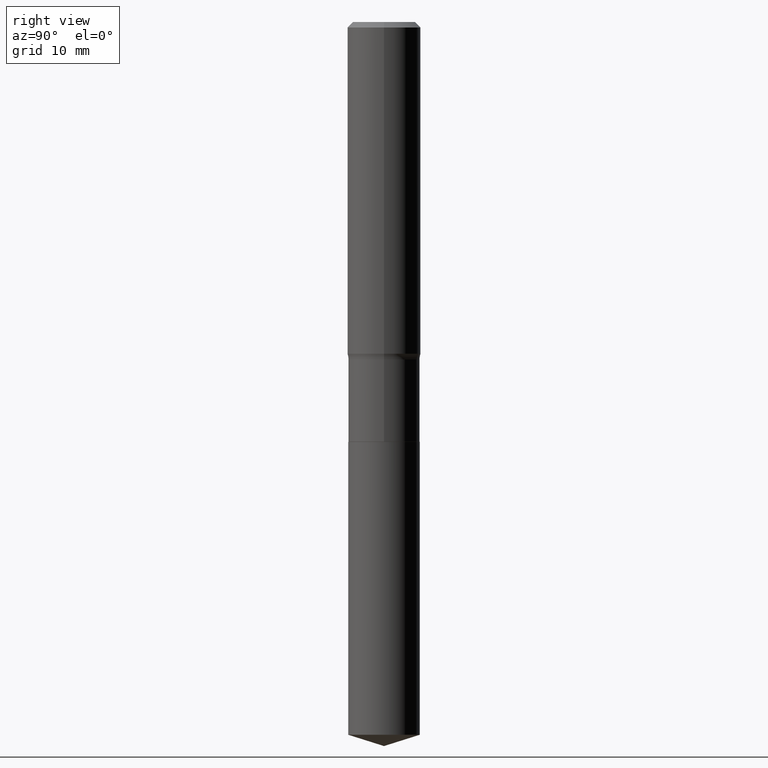
[diagram: clean part render]
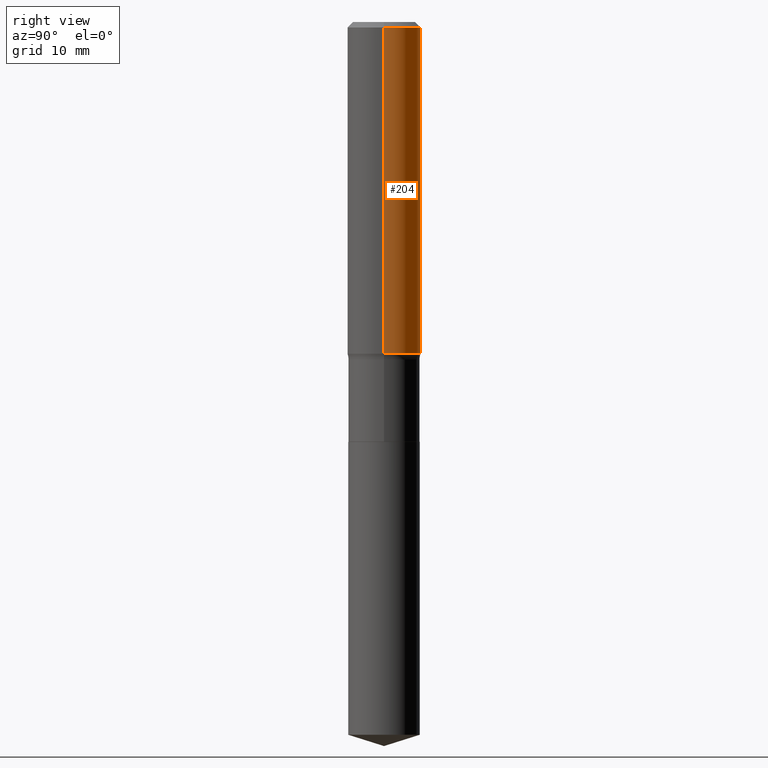
[diagram: same view with one face highlighted and labeled with its STEP entity id]
A machine part, right view. The second image highlights one B-rep face of the part: STEP entity #204.
In plain terms, the highlighted cylindrical surface (partial cylindrical patch) has radius 4.0005 mm, axis along (-0, 0, 1).
Its self-contained STEP definition (entity closure, byte-faithful):
#5 = DIRECTION ( 'NONE',  ( -2.445468806185136877E-29, 3.491481338843145188E-15, 1.000000000000000000 ) ) ;
#6 = AXIS2_PLACEMENT_3D ( 'NONE', #359, #178, #330 ) ;
#15 = ORIENTED_EDGE ( 'NONE', *, *, #299, .F. ) ;
#23 = DIRECTION ( 'NONE',  ( -2.445468806185136597E-29, 3.491481338843145583E-15, 1.000000000000000000 ) ) ;
#28 = EDGE_CURVE ( 'NONE', #426, #182, #255, .T. ) ;
#39 = VERTEX_POINT ( 'NONE', #161 ) ;
#64 = DIRECTION ( 'NONE',  ( 1.000000000000000000, -6.982962677686267499E-15, 4.876176775795936353E-29 ) ) ;
#68 = DIRECTION ( 'NONE',  ( 1.000000000000000000, -6.982962677686265922E-15, 0.000000000000000000 ) ) ;
#81 = AXIS2_PLACEMENT_3D ( 'NONE', #251, #337, #64 ) ;
#90 = CARTESIAN_POINT ( 'NONE',  ( -0.1575000000000000011, -1.410504685969955451E-15, -0.02362500000000014588 ) ) ;
#96 = ORIENTED_EDGE ( 'NONE', *, *, #236, .T. ) ;
#99 = EDGE_LOOP ( 'NONE', ( #171, #96, #15, #347 ) ) ;
#101 = CARTESIAN_POINT ( 'NONE',  ( 0.1575000000000000844, -1.099816621735587677E-15, 7.679978421878603638E-30 ) ) ;
#114 = VECTOR ( 'NONE', #5, 39.37007874015748143 ) ;
#125 = VECTOR ( 'NONE', #138, 39.37007874015748143 ) ;
#138 = DIRECTION ( 'NONE',  ( -2.445468806185136877E-29, 3.491481338843145188E-15, 1.000000000000000000 ) ) ;
#139 = EDGE_CURVE ( 'NONE', #426, #39, #472, .T. ) ;
#155 = VERTEX_POINT ( 'NONE', #90 ) ;
#161 = CARTESIAN_POINT ( 'NONE',  ( -0.1575000000000001676, -3.857627934131899504E-15, -1.425392909189378665 ) ) ;
#171 = ORIENTED_EDGE ( 'NONE', *, *, #139, .T. ) ;
#178 = DIRECTION ( 'NONE',  ( -2.445468806185136597E-29, 3.491481338843145583E-15, 1.000000000000000000 ) ) ;
#180 = FACE_OUTER_BOUND ( 'NONE', #99, .T. ) ;
#182 = VERTEX_POINT ( 'NONE', #219 ) ;
#204 = ADVANCED_FACE ( 'NONE', ( #180 ), #377, .T. ) ;
#219 = CARTESIAN_POINT ( 'NONE',  ( 0.1575000000000000011, -1.182302868365756679E-15, -0.02362500000000014588 ) ) ;
#236 = EDGE_CURVE ( 'NONE', #39, #155, #445, .T. ) ;
#251 = CARTESIAN_POINT ( 'NONE',  ( 0.000000000000000000, 0.000000000000000000, 0.000000000000000000 ) ) ;
#255 = LINE ( 'NONE', #101, #114 ) ;
#299 = EDGE_CURVE ( 'NONE', #182, #155, #386, .T. ) ;
#330 = DIRECTION ( 'NONE',  ( 1.000000000000000000, -6.982962677686267499E-15, 0.000000000000000000 ) ) ;
#337 = DIRECTION ( 'NONE',  ( -2.445468806185136597E-29, 3.491481338843145583E-15, 1.000000000000000000 ) ) ;
#347 = ORIENTED_EDGE ( 'NONE', *, *, #28, .F. ) ;
#352 = CARTESIAN_POINT ( 'NONE',  ( 0.1575000000000001676, -6.076549364689645377E-15, -1.425392909189378665 ) ) ;
#359 = CARTESIAN_POINT ( 'NONE',  ( 3.485753895980108822E-29, -4.976732742954058685E-15, -1.425392909189378665 ) ) ;
#377 = CYLINDRICAL_SURFACE ( 'NONE', #81, 0.1575000000000000844 ) ;
#386 = CIRCLE ( 'NONE', #403, 0.1575000000000000011 ) ;
#403 = AXIS2_PLACEMENT_3D ( 'NONE', #453, #23, #68 ) ;
#426 = VERTEX_POINT ( 'NONE', #352 ) ;
#445 = LINE ( 'NONE', #483, #125 ) ;
#453 = CARTESIAN_POINT ( 'NONE',  ( 5.777420054612421104E-31, -8.248624663016984002E-17, -0.02362500000000014588 ) ) ;
#472 = CIRCLE ( 'NONE', #6, 0.1575000000000001676 ) ;
#483 = CARTESIAN_POINT ( 'NONE',  ( -0.1575000000000000844, 1.119104808822158392E-15, -7.747322767151481189E-30 ) ) ;